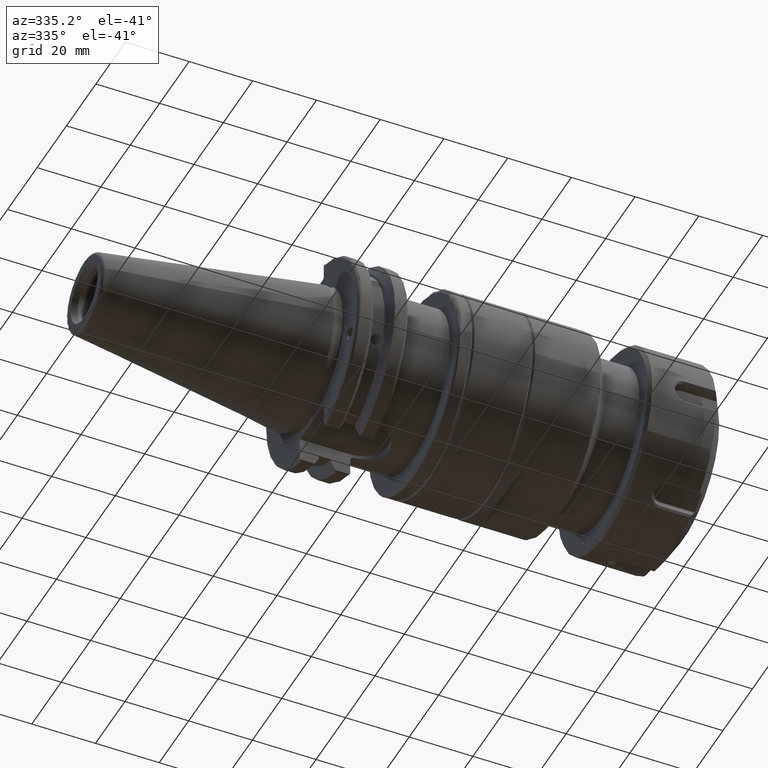
[diagram: clean part render]
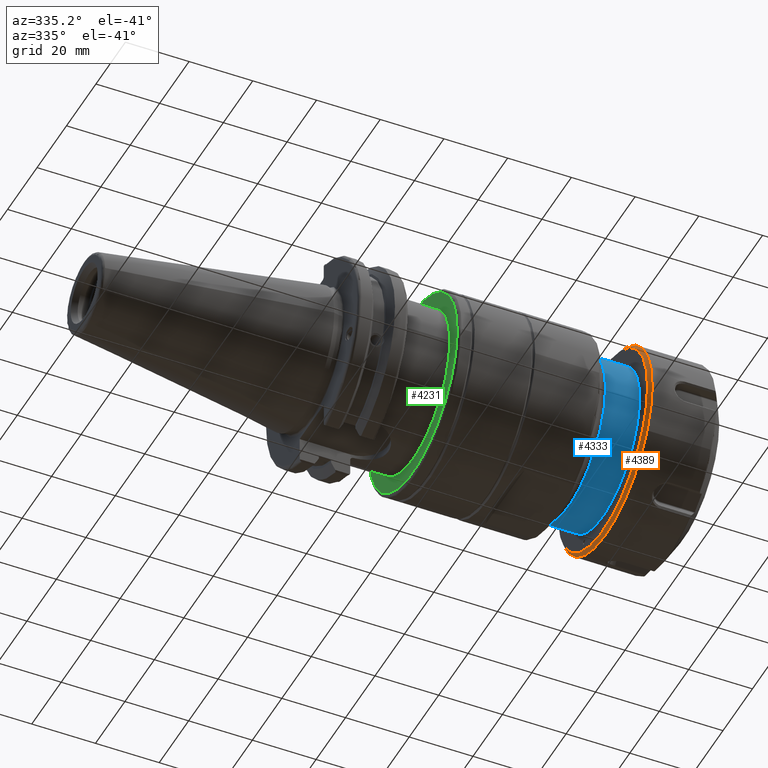
[diagram: same view with three faces highlighted in distinct colors, each labeled with its STEP entity id]
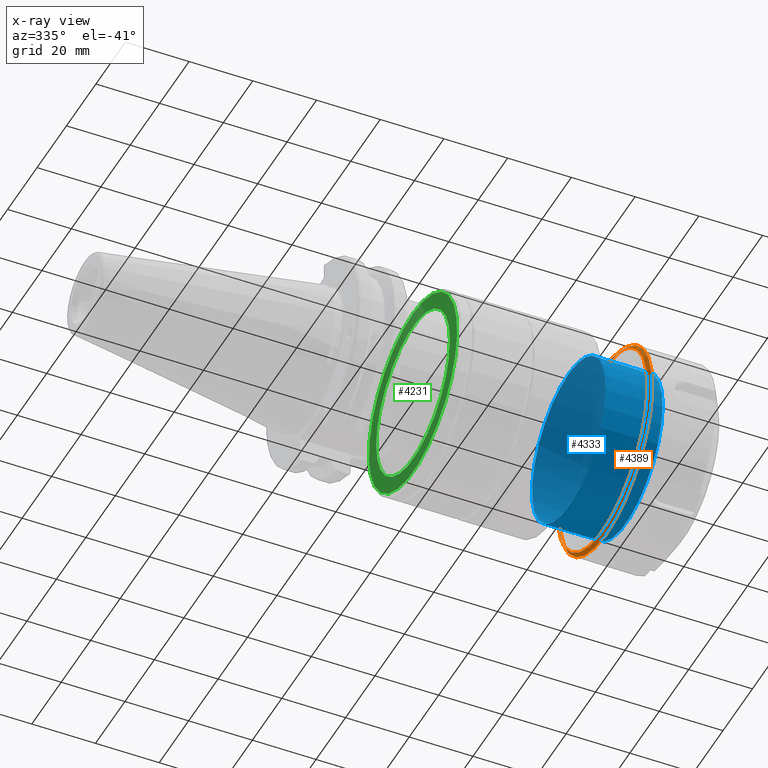
[diagram: x-ray of the same camera — body ghosted, the three highlighted faces saturated]
A machine part, auxiliary view with three faces highlighted in distinct colors.
The next image is the same camera in x-ray (body ghosted, the three faces saturated) — at least one of them is partly hidden behind the body in this view.
Their STEP definitions:

[orange] entity #4389 — the highlighted conical surface has half-angle 45 deg.
#221=CONICAL_SURFACE('',#4989,30.9999999999,0.785398163397448);
#582=FACE_OUTER_BOUND('',#887,.T.);
#887=EDGE_LOOP('',(#3724,#3725,#3726,#3727));
#1160=CIRCLE('',#4986,30.5);
#1163=CIRCLE('',#4990,31.5);
#1376=LINE('',#7858,#1617);
#1617=VECTOR('',#6067,30.9999999999);
#2095=VERTEX_POINT('',#7849);
#2098=VERTEX_POINT('',#7856);
#2654=EDGE_CURVE('',#2095,#2095,#1160,.T.);
#2657=EDGE_CURVE('',#2098,#2098,#1163,.T.);
#2658=EDGE_CURVE('',#2098,#2095,#1376,.T.);
#3724=ORIENTED_EDGE('',*,*,#2657,.T.);
#3725=ORIENTED_EDGE('',*,*,#2658,.T.);
#3726=ORIENTED_EDGE('',*,*,#2654,.F.);
#3727=ORIENTED_EDGE('',*,*,#2658,.F.);
#4389=ADVANCED_FACE('',(#582),#221,.T.);
#4986=AXIS2_PLACEMENT_3D('',#7850,#6057,#6058);
#4989=AXIS2_PLACEMENT_3D('',#7855,#6063,#6064);
#4990=AXIS2_PLACEMENT_3D('',#7857,#6065,#6066);
#6057=DIRECTION('center_axis',(-1.,0.,0.));
#6058=DIRECTION('ref_axis',(0.,0.,1.));
#6063=DIRECTION('center_axis',(1.,0.,0.));
#6064=DIRECTION('ref_axis',(0.,0.,-1.));
#6065=DIRECTION('center_axis',(-1.,0.,0.));
#6066=DIRECTION('ref_axis',(0.,0.,1.));
#6067=DIRECTION('',(-0.707106781186548,8.65956056235493E-17,-0.707106781186548));
#7849=CARTESIAN_POINT('',(-12.75,-3.73517273739943E-15,30.5));
#7850=CARTESIAN_POINT('Origin',(-12.75,0.,0.));
#7855=CARTESIAN_POINT('Origin',(-12.2500000001,0.,0.));
#7856=CARTESIAN_POINT('',(-11.75,-3.85763741731416E-15,31.5));
#7857=CARTESIAN_POINT('Origin',(-11.75,0.,0.));
#7858=CARTESIAN_POINT('',(-12.2500000001,-3.79640507734455E-15,30.9999999999));

[blue] entity #4333 — the highlighted cylindrical surface (bore or boss wall) has radius 25 mm, axis along (1, 0, 0).
#526=FACE_OUTER_BOUND('',#817,.T.);
#817=EDGE_LOOP('',(#3460,#3461,#3462,#3463,#3464,#3465));
#1088=CIRCLE('',#4854,25.);
#1089=CIRCLE('',#4855,25.);
#1091=CIRCLE('',#4859,25.);
#1092=CIRCLE('',#4860,25.);
#1333=LINE('',#7479,#1574);
#1574=VECTOR('',#5760,25.);
#2006=VERTEX_POINT('',#7469);
#2007=VERTEX_POINT('',#7471);
#2009=VERTEX_POINT('',#7478);
#2010=VERTEX_POINT('',#7480);
#2522=EDGE_CURVE('',#2006,#2007,#1088,.T.);
#2523=EDGE_CURVE('',#2007,#2006,#1089,.T.);
#2525=EDGE_CURVE('',#2007,#2009,#1333,.T.);
#2526=EDGE_CURVE('',#2010,#2009,#1091,.T.);
#2527=EDGE_CURVE('',#2009,#2010,#1092,.T.);
#3460=ORIENTED_EDGE('',*,*,#2522,.F.);
#3461=ORIENTED_EDGE('',*,*,#2523,.F.);
#3462=ORIENTED_EDGE('',*,*,#2525,.T.);
#3463=ORIENTED_EDGE('',*,*,#2526,.F.);
#3464=ORIENTED_EDGE('',*,*,#2527,.F.);
#3465=ORIENTED_EDGE('',*,*,#2525,.F.);
#4177=CYLINDRICAL_SURFACE('',#4858,25.);
#4333=ADVANCED_FACE('',(#526),#4177,.T.);
#4854=AXIS2_PLACEMENT_3D('',#7472,#5750,#5751);
#4855=AXIS2_PLACEMENT_3D('',#7473,#5752,#5753);
#4858=AXIS2_PLACEMENT_3D('',#7477,#5758,#5759);
#4859=AXIS2_PLACEMENT_3D('',#7481,#5761,#5762);
#4860=AXIS2_PLACEMENT_3D('',#7482,#5763,#5764);
#5750=DIRECTION('center_axis',(1.,0.,0.));
#5751=DIRECTION('ref_axis',(0.,-1.,0.));
#5752=DIRECTION('center_axis',(1.,0.,0.));
#5753=DIRECTION('ref_axis',(0.,-1.,0.));
#5758=DIRECTION('center_axis',(1.,0.,0.));
#5759=DIRECTION('ref_axis',(0.,1.,0.));
#5760=DIRECTION('',(-1.,0.,0.));
#5761=DIRECTION('center_axis',(-1.,0.,0.));
#5762=DIRECTION('ref_axis',(0.,-1.,1.83697019872103E-16));
#5763=DIRECTION('center_axis',(-1.,0.,0.));
#5764=DIRECTION('ref_axis',(0.,-1.,1.83697019872103E-16));
#7469=CARTESIAN_POINT('',(43.3,25.,3.06161699786838E-15));
#7471=CARTESIAN_POINT('',(43.3,-25.,-3.06161699786838E-15));
#7472=CARTESIAN_POINT('Origin',(43.3,0.,0.));
#7473=CARTESIAN_POINT('Origin',(43.3,0.,0.));
#7477=CARTESIAN_POINT('Origin',(34.8,0.,0.));
#7478=CARTESIAN_POINT('',(25.3657727781878,-25.,-3.06161699786838E-15));
#7479=CARTESIAN_POINT('',(34.8,-25.,-3.06161699786838E-15));
#7480=CARTESIAN_POINT('',(25.3657727781878,-3.06161699786838E-15,25.));
#7481=CARTESIAN_POINT('Origin',(25.3657727781878,0.,0.));
#7482=CARTESIAN_POINT('Origin',(25.3657727781878,0.,0.));

[green] entity #4231 — the highlighted planar face has unit normal (-1, 0, 0).
#237=FACE_BOUND('',#691,.T.);
#308=PLANE('',#4647);
#424=FACE_OUTER_BOUND('',#690,.T.);
#690=EDGE_LOOP('',(#2951));
#691=EDGE_LOOP('',(#2952));
#997=CIRCLE('',#4643,30.);
#1000=CIRCLE('',#4648,25.);
#1854=VERTEX_POINT('',#6649);
#1857=VERTEX_POINT('',#6659);
#2281=EDGE_CURVE('',#1854,#1854,#997,.T.);
#2285=EDGE_CURVE('',#1857,#1857,#1000,.T.);
#2951=ORIENTED_EDGE('',*,*,#2281,.F.);
#2952=ORIENTED_EDGE('',*,*,#2285,.T.);
#4231=ADVANCED_FACE('',(#424,#237),#308,.T.);
#4643=AXIS2_PLACEMENT_3D('',#6651,#5237,#5238);
#4647=AXIS2_PLACEMENT_3D('',#6658,#5246,#5247);
#4648=AXIS2_PLACEMENT_3D('',#6660,#5248,#5249);
#5237=DIRECTION('center_axis',(1.,0.,0.));
#5238=DIRECTION('ref_axis',(0.,-1.,1.83697019872103E-16));
#5246=DIRECTION('center_axis',(-1.,0.,0.));
#5247=DIRECTION('ref_axis',(0.,0.,1.));
#5248=DIRECTION('center_axis',(1.,0.,0.));
#5249=DIRECTION('ref_axis',(0.,0.,-1.));
#6649=CARTESIAN_POINT('',(35.,-3.67394039744206E-15,30.));
#6651=CARTESIAN_POINT('Origin',(35.,0.,0.));
#6658=CARTESIAN_POINT('Origin',(35.,31.,0.));
#6659=CARTESIAN_POINT('',(35.,-25.,-3.06161699786838E-15));
#6660=CARTESIAN_POINT('Origin',(35.,0.,0.));